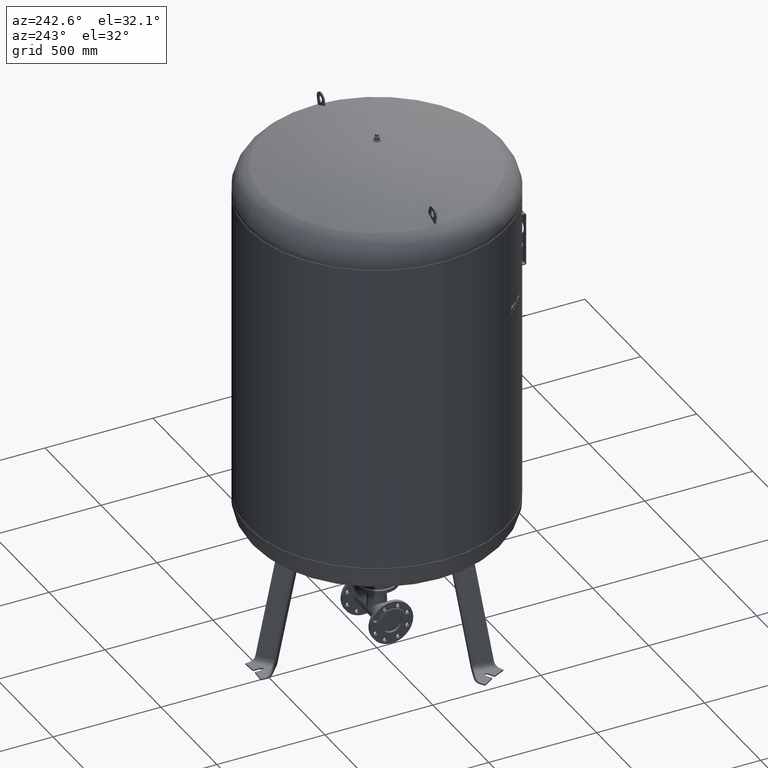
[diagram: clean part render]
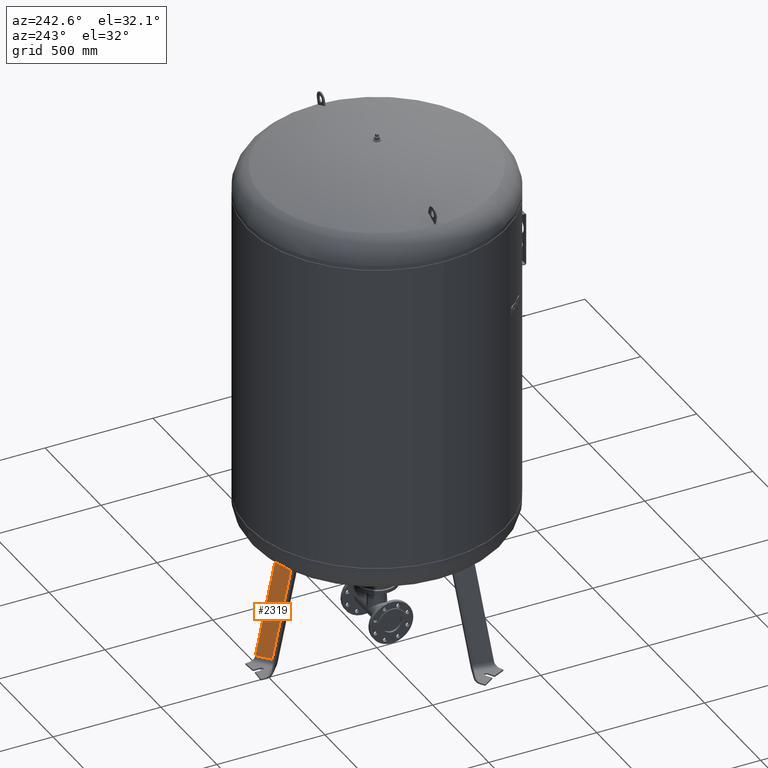
[diagram: same view with one face highlighted and labeled with its STEP entity id]
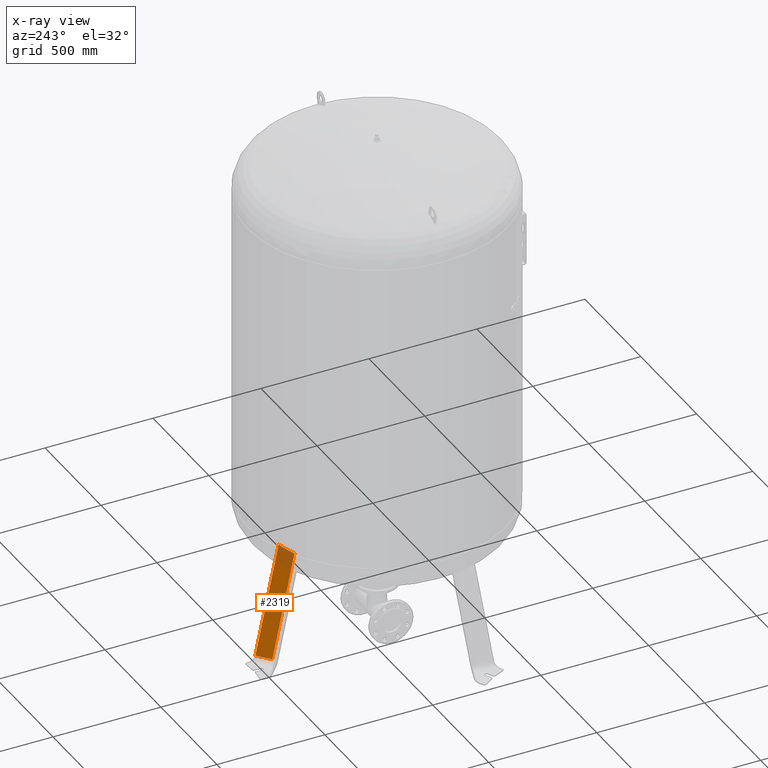
[diagram: x-ray of the same camera — body ghosted, the highlighted face saturated]
A machine part, auxiliary view. The second image highlights one B-rep face of the part: STEP entity #2319.
The next image is the same camera in x-ray: the body ghosted, the highlighted face saturated — about 15% of this face is hidden behind the body in this view.
In plain terms, the highlighted planar face has unit normal (-0.6455, 0.7471, 0.1588).
Its self-contained STEP definition (entity closure, byte-faithful):
#2107=CARTESIAN_POINT('',(16.136450826554526,476.124712592942840,27.029948423057292));
#2108=VERTEX_POINT('',#2107);
#2186=CARTESIAN_POINT('',(16.136450826554515,373.434382003443090,510.149969666713160));
#2187=VERTEX_POINT('',#2186);
#2268=CARTESIAN_POINT('',(72.837866169854962,417.385051332288130,533.843746499036000));
#2269=VERTEX_POINT('',#2268);
#2277=CARTESIAN_POINT('',(16.136450826554515,373.434382003443090,510.149969666713160));
#2278=CARTESIAN_POINT('',(17.841674515575590,374.779004862849720,510.754973838816850));
#2279=CARTESIAN_POINT('',(19.549197401052108,376.123069364861240,511.371950061965830));
#2280=CARTESIAN_POINT('',(27.027584395690265,381.999771428765430,514.120476420435810));
#2281=CARTESIAN_POINT('',(32.821119649068919,386.527030554146900,516.369477981931820));
#2282=CARTESIAN_POINT('',(49.986371892525618,399.873012699596470,523.350498082422520));
#2283=CARTESIAN_POINT('',(61.407704358636401,408.666354017395630,528.403592446426050));
#2284=CARTESIAN_POINT('',(72.837866169854962,417.385051332288130,533.843746499036000));
#2285=B_SPLINE_CURVE_WITH_KNOTS('',3,(#2277,#2278,#2279,#2280,#2281,#2282,#2283,#2284),.UNSPECIFIED.,.F.,.U.,(4,2,2,4),(5.937335443723129,6.588195328792665,8.784260438390220,13.073486937020286),.UNSPECIFIED.);
#2286=EDGE_CURVE('',#2187,#2269,#2285,.T.);
#2291=CARTESIAN_POINT('',(4.795317E-016,476.755986587218840,-41.527282742766886));
#2292=DIRECTION('',(-0.645458033062182,0.747104967402683,0.158802063077708));
#2293=DIRECTION('',(-1.249466E-016,-0.207911690817760,0.978147600733806));
#2294=AXIS2_PLACEMENT_3D('',#2291,#2292,#2293);
#2295=PLANE('',#2294);
#2296=CARTESIAN_POINT('',(72.837866169855019,525.111649658243320,27.029948423057292));
#2297=VERTEX_POINT('',#2296);
#2298=CARTESIAN_POINT('',(72.837866169855019,525.111649658243320,27.029948423057292));
#2299=DIRECTION('',(-1.097075E-016,-0.207911690817760,0.978147600733805));
#2300=VECTOR('',#2299,518.136319810800960);
#2301=LINE('',#2298,#2300);
#2302=EDGE_CURVE('',#2297,#2269,#2301,.T.);
#2303=ORIENTED_EDGE('',*,*,#2302,.F.);
#2304=CARTESIAN_POINT('',(16.136450826554526,476.124712592942840,27.029948423057292));
#2305=DIRECTION('',(0.756707249513242,0.653753882232530,0.0));
#2306=VECTOR('',#2305,74.931772333057651);
#2307=LINE('',#2304,#2306);
#2308=EDGE_CURVE('',#2108,#2297,#2307,.T.);
#2309=ORIENTED_EDGE('',*,*,#2308,.F.);
#2310=CARTESIAN_POINT('',(16.136450826554515,373.434382003443090,510.149969666713160));
#2311=DIRECTION('',(2.157898E-017,0.207911690817760,-0.978147600733806));
#2312=VECTOR('',#2311,493.913209909444730);
#2313=LINE('',#2310,#2312);
#2314=EDGE_CURVE('',#2187,#2108,#2313,.T.);
#2315=ORIENTED_EDGE('',*,*,#2314,.F.);
#2316=ORIENTED_EDGE('',*,*,#2286,.T.);
#2317=EDGE_LOOP('',(#2303,#2309,#2315,#2316));
#2318=FACE_OUTER_BOUND('',#2317,.T.);
#2319=ADVANCED_FACE('',(#2318),#2295,.T.);